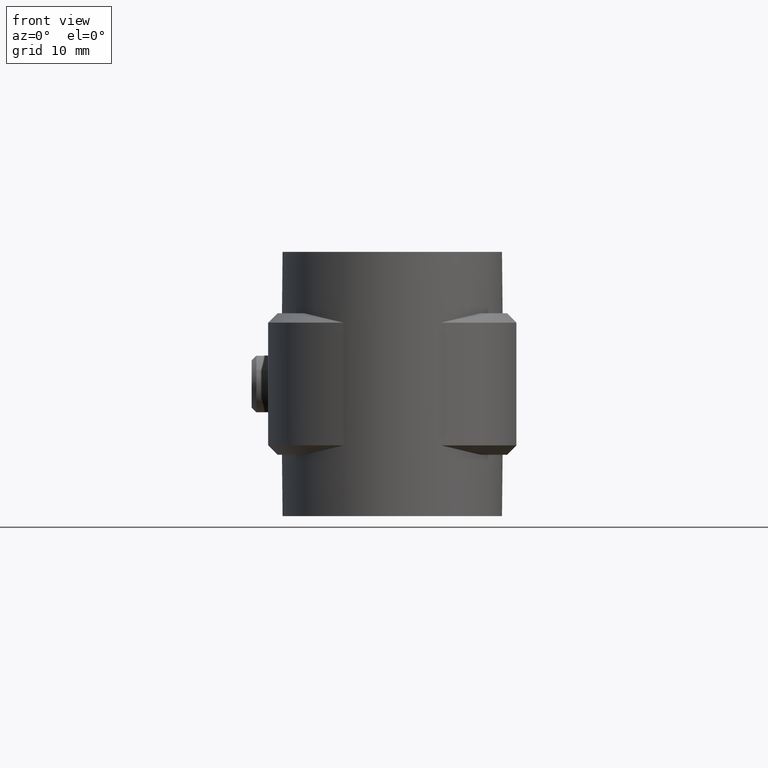
[diagram: clean part render]
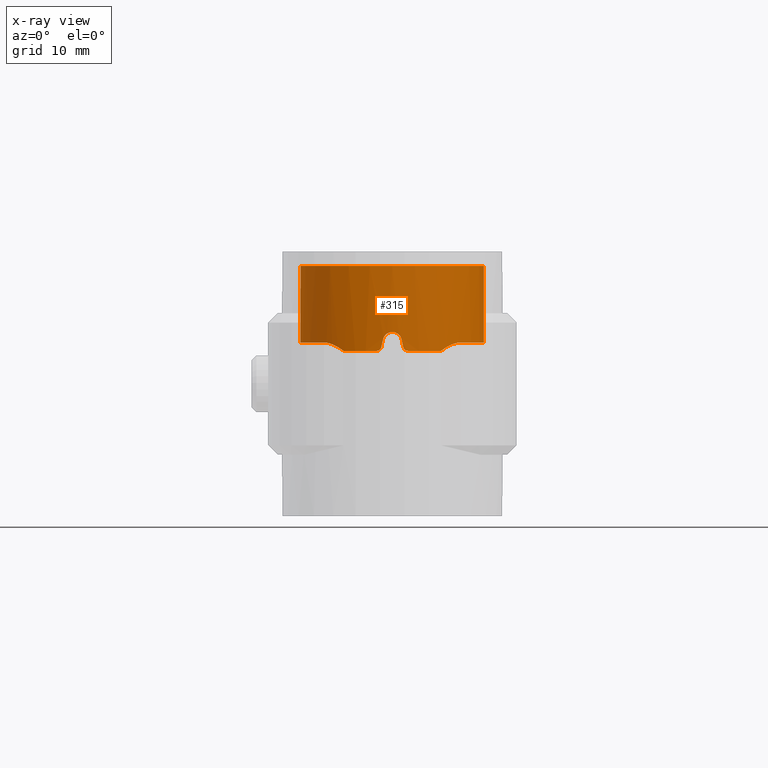
[diagram: x-ray — body ghosted, one internal face saturated and labeled with its STEP entity id]
A machine part, front view, then the same camera in x-ray: the body is ghosted and one INTERNAL B-rep face — a face not visible from any outside direction — is saturated and labeled: STEP entity #315.
In plain terms, the highlighted cylindrical surface (partial cylindrical patch) has radius 9.74 mm, axis along (0, 0, 1).
Its self-contained STEP definition (entity closure, byte-faithful):
#315 = ADVANCED_FACE( '', ( #506 ), #507, .T. );
#506 = FACE_OUTER_BOUND( '', #916, .T. );
#507 = CYLINDRICAL_SURFACE( '', #917, 9.74000000000000 );
#916 = EDGE_LOOP( '', ( #1902, #1903, #1904, #1905, #1906, #1907, #1908, #1909, #1910, #1911, #1912, #1913, #1914, #1915, #1916, #1917 ) );
#917 = AXIS2_PLACEMENT_3D( '', #1918, #1919, #1920 );
#1902 = ORIENTED_EDGE( '', *, *, #4376, .F. );
#1903 = ORIENTED_EDGE( '', *, *, #4377, .T. );
#1904 = ORIENTED_EDGE( '', *, *, #4378, .T. );
#1905 = ORIENTED_EDGE( '', *, *, #4379, .F. );
#1906 = ORIENTED_EDGE( '', *, *, #4380, .F. );
#1907 = ORIENTED_EDGE( '', *, *, #4381, .T. );
#1908 = ORIENTED_EDGE( '', *, *, #4382, .T. );
#1909 = ORIENTED_EDGE( '', *, *, #4383, .T. );
#1910 = ORIENTED_EDGE( '', *, *, #4384, .F. );
#1911 = ORIENTED_EDGE( '', *, *, #4385, .F. );
#1912 = ORIENTED_EDGE( '', *, *, #4386, .F. );
#1913 = ORIENTED_EDGE( '', *, *, #4387, .F. );
#1914 = ORIENTED_EDGE( '', *, *, #4388, .F. );
#1915 = ORIENTED_EDGE( '', *, *, #4389, .F. );
#1916 = ORIENTED_EDGE( '', *, *, #4390, .F. );
#1917 = ORIENTED_EDGE( '', *, *, #4391, .F. );
#1918 = CARTESIAN_POINT( '', ( 0.000000000000000, 0.000000000000000, 0.000000000000000 ) );
#1919 = DIRECTION( '', ( 0.000000000000000, 0.000000000000000, 1.00000000000000 ) );
#1920 = DIRECTION( '', ( 1.00000000000000, -6.12303176911189E-017, 0.000000000000000 ) );
#4376 = EDGE_CURVE( '', #4880, #4881, #4882, .T. );
#4377 = EDGE_CURVE( '', #4880, #4883, #4884, .T. );
#4378 = EDGE_CURVE( '', #4883, #4885, #4886, .T. );
#4379 = EDGE_CURVE( '', #4887, #4885, #4888, .T. );
#4380 = EDGE_CURVE( '', #4889, #4887, #4890, .F. );
#4381 = EDGE_CURVE( '', #4889, #4891, #4892, .T. );
#4382 = EDGE_CURVE( '', #4891, #4893, #4894, .T. );
#4383 = EDGE_CURVE( '', #4893, #4895, #4896, .T. );
#4384 = EDGE_CURVE( '', #4897, #4895, #4898, .T. );
#4385 = EDGE_CURVE( '', #4899, #4897, #4900, .T. );
#4386 = EDGE_CURVE( '', #4901, #4899, #4902, .T. );
#4387 = EDGE_CURVE( '', #4903, #4901, #4904, .T. );
#4388 = EDGE_CURVE( '', #4905, #4903, #4906, .T. );
#4389 = EDGE_CURVE( '', #4907, #4905, #4908, .T. );
#4390 = EDGE_CURVE( '', #4909, #4907, #4910, .T. );
#4391 = EDGE_CURVE( '', #4881, #4909, #4911, .T. );
#4880 = VERTEX_POINT( '', #5722 );
#4881 = VERTEX_POINT( '', #5723 );
#4882 = B_SPLINE_CURVE_WITH_KNOTS( '', 3, ( #5724, #5725, #5726, #5727 ), .UNSPECIFIED., .F., .F., ( 4, 4 ), ( 0.00511247518674579, 0.00528905155583519 ), .UNSPECIFIED. );
#4883 = VERTEX_POINT( '', #5728 );
#4884 = B_SPLINE_CURVE_WITH_KNOTS( '', 3, ( #5729, #5730, #5731, #5732, #5733, #5734, #5735, #5736 ), .UNSPECIFIED., .F., .F., ( 4, 2, 2, 4 ), ( 0.00165729756427071, 0.00290105319597619, 0.00352293101182893, 0.00414480882768168 ), .UNSPECIFIED. );
#4885 = VERTEX_POINT( '', #5737 );
#4886 = B_SPLINE_CURVE_WITH_KNOTS( '', 3, ( #5738, #5739, #5740, #5741, #5742, #5743, #5744, #5745, #5746, #5747, #5748, #5749, #5750, #5751, #5752, #5753, #5754, #5755, #5756, #5757, #5758, #5759, #5760, #5761, #5762, #5763 ), .UNSPECIFIED., .F., .F., ( 4, 2, 2, 2, 2, 2, 2, 2, 2, 2, 2, 2, 4 ), ( 0.000128665650344789, 0.00114666360792160, 0.00216466156549841, 0.00420065748065202, 0.00623665339580563, 0.00725465135338244, 0.00827264931095925, 0.00929064726853606, 0.0103086452261129, 0.0123446411412665, 0.0133626390988433, 0.0143806370564201, 0.0164166329715737 ), .UNSPECIFIED. );
#4887 = VERTEX_POINT( '', #5764 );
#4888 = LINE( '', #5765, #5766 );
#4889 = VERTEX_POINT( '', #5767 );
#4890 = CIRCLE( '', #5768, 9.74000000000000 );
#4891 = VERTEX_POINT( '', #5769 );
#4892 = LINE( '', #5770, #5771 );
#4893 = VERTEX_POINT( '', #5772 );
#4894 = B_SPLINE_CURVE_WITH_KNOTS( '', 3, ( #5773, #5774, #5775, #5776, #5777, #5778, #5779, #5780, #5781, #5782, #5783, #5784, #5785, #5786, #5787, #5788, #5789, #5790, #5791, #5792, #5793, #5794, #5795, #5796, #5797, #5798, #5799, #5800 ), .UNSPECIFIED., .F., .F., ( 4, 2, 2, 2, 2, 2, 2, 2, 2, 2, 2, 2, 2, 4 ), ( 0.000000000000000, 0.00203570962645634, 0.00305356443968451, 0.00407141925291267, 0.00610712887936901, 0.00712498369259718, 0.00814283850582535, 0.00916069331905351, 0.0101785481322817, 0.0122142577587380, 0.0132321125719662, 0.0142499673851944, 0.0152678221984225, 0.0162856770116507 ), .UNSPECIFIED. );
#4895 = VERTEX_POINT( '', #5801 );
#4896 = B_SPLINE_CURVE_WITH_KNOTS( '', 3, ( #5802, #5803, #5804, #5805, #5806, #5807, #5808, #5809 ), .UNSPECIFIED., .F., .F., ( 4, 2, 2, 4 ), ( 5.63355521491148E-005, 0.000684171958215789, 0.00131200836428246, 0.00256768117641581 ), .UNSPECIFIED. );
#4897 = VERTEX_POINT( '', #5810 );
#4898 = B_SPLINE_CURVE_WITH_KNOTS( '', 3, ( #5811, #5812, #5813, #5814 ), .UNSPECIFIED., .F., .F., ( 4, 4 ), ( 3.87895961444886E-018, 0.000176569787224747 ), .UNSPECIFIED. );
#4899 = VERTEX_POINT( '', #5815 );
#4900 = CIRCLE( '', #5816, 9.74000000000000 );
#4901 = VERTEX_POINT( '', #5817 );
#4902 = B_SPLINE_CURVE_WITH_KNOTS( '', 3, ( #5818, #5819, #5820, #5821, #5822, #5823 ), .UNSPECIFIED., .F., .F., ( 4, 2, 4 ), ( 1.78811203067275E-018, 0.000337975344790109, 0.000675950689580215 ), .UNSPECIFIED. );
#4903 = VERTEX_POINT( '', #5824 );
#4904 = ELLIPSE( '', #5825, 44.3711563805861, 9.74000000000000 );
#4905 = VERTEX_POINT( '', #5826 );
#4906 = B_SPLINE_CURVE_WITH_KNOTS( '', 3, ( #5827, #5828, #5829, #5830, #5831, #5832, #5833, #5834, #5835, #5836 ), .UNSPECIFIED., .F., .F., ( 4, 2, 2, 2, 4 ), ( 0.000000000000000, 0.000672051809726939, 0.00134410361945388, 0.00201615542918082, 0.00268820723890776 ), .UNSPECIFIED. );
#4907 = VERTEX_POINT( '', #5837 );
#4908 = ELLIPSE( '', #5838, 44.3711337458409, 9.74000000000000 );
#4909 = VERTEX_POINT( '', #5839 );
#4910 = B_SPLINE_CURVE_WITH_KNOTS( '', 3, ( #5840, #5841, #5842, #5843, #5844, #5845 ), .UNSPECIFIED., .F., .F., ( 4, 2, 4 ), ( 7.77003152234485E-018, 0.000337932954143210, 0.000675865908286413 ), .UNSPECIFIED. );
#4911 = CIRCLE( '', #5846, 9.74000000000000 );
#5722 = CARTESIAN_POINT( '', ( 5.15290067253359, -8.26530184925178, -9.00334139722807 ) );
#5723 = CARTESIAN_POINT( '', ( 5.00000000000000, -8.35868410696325, -9.00000000000000 ) );
#5724 = CARTESIAN_POINT( '', ( 5.15290067252644, -8.26530184924160, -9.00334139722775 ) );
#5725 = CARTESIAN_POINT( '', ( 5.10238839465892, -8.29679310695268, -9.00113261389081 ) );
#5726 = CARTESIAN_POINT( '', ( 5.05142599710823, -8.32792208961091, -8.99999999999997 ) );
#5727 = CARTESIAN_POINT( '', ( 5.00000000000000, -8.35868410696325, -8.99999999999997 ) );
#5728 = CARTESIAN_POINT( '', ( 6.95902164912057, -6.81466199124514, -8.11799656461130 ) );
#5729 = CARTESIAN_POINT( '', ( 5.15290067251871, -8.26530184924641, -9.00334139721352 ) );
#5730 = CARTESIAN_POINT( '', ( 5.44907426806421, -8.08065606770030, -8.76856680556298 ) );
#5731 = CARTESIAN_POINT( '', ( 5.75207947105306, -7.86971313882393, -8.57833081527870 ) );
#5732 = CARTESIAN_POINT( '', ( 6.20887158971729, -7.50701767445459, -8.35510613786718 ) );
#5733 = CARTESIAN_POINT( '', ( 6.36246690587964, -7.37752766765439, -8.29102575602881 ) );
#5734 = CARTESIAN_POINT( '', ( 6.66465683565371, -7.10571944833132, -8.18697797906827 ) );
#5735 = CARTESIAN_POINT( '', ( 6.81353976275907, -6.96322323417316, -8.14869550666416 ) );
#5736 = CARTESIAN_POINT( '', ( 6.95896523879890, -6.81471956907902, -8.11799635953711 ) );
#5737 = CARTESIAN_POINT( '', ( 6.01729818780882, 7.65896354077948, -8.12086241231917 ) );
#5738 = CARTESIAN_POINT( '', ( 6.95919067098810, -6.81448935759907, -8.11799709973607 ) );
#5739 = CARTESIAN_POINT( '', ( 7.19946211573694, -6.56911590273610, -8.11869935564063 ) );
#5740 = CARTESIAN_POINT( '', ( 7.42482155270499, -6.31308582106119, -8.11750239221288 ) );
#5741 = CARTESIAN_POINT( '', ( 7.84666105550341, -5.78039254321387, -8.11798463489034 ) );
#5742 = CARTESIAN_POINT( '', ( 8.04313917433543, -5.50372695296684, -8.11836586933796 ) );
#5743 = CARTESIAN_POINT( '', ( 8.58920928475245, -4.64274449705062, -8.11900401654248 ) );
#5744 = CARTESIAN_POINT( '', ( 8.89743619109401, -4.02070307979342, -8.11843008264165 ) );
#5745 = CARTESIAN_POINT( '', ( 9.36998587052903, -2.74477482073415, -8.11775880203325 ) );
#5746 = CARTESIAN_POINT( '', ( 9.53843195309938, -2.08698353733982, -8.11883913647496 ) );
#5747 = CARTESIAN_POINT( '', ( 9.68712070858720, -1.06990115408836, -8.11950834662493 ) );
#5748 = CARTESIAN_POINT( '', ( 9.71884039901968, -0.726524416825599, -8.11955266329700 ) );
#5749 = CARTESIAN_POINT( '', ( 9.74585126813843, -0.0456014164848170, -8.11923941266630 ) );
#5750 = CARTESIAN_POINT( '', ( 9.74147539217435, 0.293921268240220, -8.11888495175145 ) );
#5751 = CARTESIAN_POINT( '', ( 9.69740548047307, 0.971112493768436, -8.11821072912186 ) );
#5752 = CARTESIAN_POINT( '', ( 9.65771221961664, 1.30878108905129, -8.11792969634905 ) );
#5753 = CARTESIAN_POINT( '', ( 9.54227922223956, 1.98222614774553, -8.11809740901925 ) );
#5754 = CARTESIAN_POINT( '', ( 9.46597552632661, 2.31938436886294, -8.11841516356494 ) );
#5755 = CARTESIAN_POINT( '', ( 9.18742478873919, 3.30535502078380, -8.11906128548839 ) );
#5756 = CARTESIAN_POINT( '', ( 8.93555770435930, 3.93548479817660, -8.11883802413083 ) );
#5757 = CARTESIAN_POINT( '', ( 8.45911729182918, 4.84015419839390, -8.11805909968800 ) );
#5758 = CARTESIAN_POINT( '', ( 8.28252414688924, 5.13659995468791, -8.11778774980607 ) );
#5759 = CARTESIAN_POINT( '', ( 7.90133278100169, 5.70559423918063, -8.11805142712227 ) );
#5760 = CARTESIAN_POINT( '', ( 7.69720355035747, 5.97793831516410, -8.11870246683852 ) );
#5761 = CARTESIAN_POINT( '', ( 7.04533948353480, 6.75952273048299, -8.12065349690706 ) );
#5762 = CARTESIAN_POINT( '', ( 6.55856919469537, 7.23371160799398, -8.12159327370025 ) );
#5763 = CARTESIAN_POINT( '', ( 6.01729818780897, 7.65896354077960, -8.12086241231967 ) );
#5764 = CARTESIAN_POINT( '', ( 6.01729818780890, 7.65896354077964, 0.000000000000000 ) );
#5765 = CARTESIAN_POINT( '', ( 6.01729818780889, 7.65896354077964, 0.000000000000000 ) );
#5766 = VECTOR( '', #8238, 1000.00000000000 );
#5767 = CARTESIAN_POINT( '', ( -6.01729818780890, 7.65896354077964, 0.000000000000000 ) );
#5768 = AXIS2_PLACEMENT_3D( '', #8239, #8240, #8241 );
#5769 = CARTESIAN_POINT( '', ( -6.01729818780882, 7.65896354077948, -8.12086241231917 ) );
#5770 = CARTESIAN_POINT( '', ( -6.01729818780890, 7.65896354077964, 0.000000000000000 ) );
#5771 = VECTOR( '', #8242, 1000.00000000000 );
#5772 = CARTESIAN_POINT( '', ( -6.95902175458089, -6.81466197978690, -8.11799664381364 ) );
#5773 = CARTESIAN_POINT( '', ( -6.01729818780881, 7.65896354077948, -8.12086241231916 ) );
#5774 = CARTESIAN_POINT( '', ( -6.55856790360628, 7.23371262234353, -8.12159327195637 ) );
#5775 = CARTESIAN_POINT( '', ( -7.04559938824156, 6.75931693220311, -8.12065285765963 ) );
#5776 = CARTESIAN_POINT( '', ( -7.69800816164832, 5.97692055958460, -8.11869998916257 ) );
#5777 = CARTESIAN_POINT( '', ( -7.90234522029800, 5.70422200289576, -8.11804897837076 ) );
#5778 = CARTESIAN_POINT( '', ( -8.28396518059934, 5.13430906020513, -8.11778851272389 ) );
#5779 = CARTESIAN_POINT( '', ( -8.46008894743079, 4.83843562215687, -8.11806057312963 ) );
#5780 = CARTESIAN_POINT( '', ( -8.93597508713593, 3.93443850058371, -8.11883893756700 ) );
#5781 = CARTESIAN_POINT( '', ( -9.18788402010638, 3.30423407850028, -8.11906113461876 ) );
#5782 = CARTESIAN_POINT( '', ( -9.46654362572337, 2.31712012752649, -8.11841338666603 ) );
#5783 = CARTESIAN_POINT( '', ( -9.54272342281448, 1.98002498577867, -8.11809593807532 ) );
#5784 = CARTESIAN_POINT( '', ( -9.65790534491521, 1.30726187785697, -8.11793024589715 ) );
#5785 = CARTESIAN_POINT( '', ( -9.69753843015102, 0.969775008865522, -8.11821197108158 ) );
#5786 = CARTESIAN_POINT( '', ( -9.74151340987761, 0.292628872892917, -8.11888632849301 ) );
#5787 = CARTESIAN_POINT( '', ( -9.74585509605919, -0.0470304201823227, -8.11924067778936 ) );
#5788 = CARTESIAN_POINT( '', ( -9.71869901505160, -0.728555329841385, -8.11955298677537 ) );
#5789 = CARTESIAN_POINT( '', ( -9.68682337335512, -1.07245044347632, -8.11950732403661 ) );
#5790 = CARTESIAN_POINT( '', ( -9.53810213639688, -2.08820394521894, -8.11883701781424 ) );
#5791 = CARTESIAN_POINT( '', ( -9.36972104814378, -2.74577238211113, -8.11775842884233 ) );
#5792 = CARTESIAN_POINT( '', ( -9.01497370934746, -3.70319910933402, -8.11826349053475 ) );
#5793 = CARTESIAN_POINT( '', ( -8.87890290792454, -4.01877121997415, -8.11857003486609 ) );
#5794 = CARTESIAN_POINT( '', ( -8.57394864935323, -4.63387996446793, -8.11883484150411 ) );
#5795 = CARTESIAN_POINT( '', ( -8.40652505998383, -4.93084431672665, -8.11879077144499 ) );
#5796 = CARTESIAN_POINT( '', ( -8.04274996764084, -5.50427672069135, -8.11836517087792 ) );
#5797 = CARTESIAN_POINT( '', ( -7.84639585990168, -5.78074292730298, -8.11798423333141 ) );
#5798 = CARTESIAN_POINT( '', ( -7.42474394500355, -6.31316831178916, -8.11750240196253 ) );
#5799 = CARTESIAN_POINT( '', ( -7.19944831793022, -6.56912999353036, -8.11869931531292 ) );
#5800 = CARTESIAN_POINT( '', ( -6.95919067098807, -6.81448935759905, -8.11799709973605 ) );
#5801 = CARTESIAN_POINT( '', ( -5.15290067251411, -8.26530184925486, -9.00334139722721 ) );
#5802 = CARTESIAN_POINT( '', ( -6.95896530010642, -6.81471950647382, -8.11799634659516 ) );
#5803 = CARTESIAN_POINT( '', ( -6.81350688909384, -6.96325680634119, -8.14870245014605 ) );
#5804 = CARTESIAN_POINT( '', ( -6.66471327543449, -7.10565543609624, -8.18697551745480 ) );
#5805 = CARTESIAN_POINT( '', ( -6.36311288460082, -7.37695985065012, -8.29078640563770 ) );
#5806 = CARTESIAN_POINT( '', ( -6.20911076329465, -7.50684069542279, -8.35497046396448 ) );
#5807 = CARTESIAN_POINT( '', ( -5.75041296862248, -7.87101044844735, -8.57918286263685 ) );
#5808 = CARTESIAN_POINT( '', ( -5.44761061503819, -8.08156856415886, -8.76972703235672 ) );
#5809 = CARTESIAN_POINT( '', ( -5.15290067250837, -8.26530184925286, -9.00334139722172 ) );
#5810 = CARTESIAN_POINT( '', ( -5.00000000000005, -8.35868410696322, -9.00000000000000 ) );
#5811 = CARTESIAN_POINT( '', ( -5.00000000000005, -8.35868410696322, -8.99999999999997 ) );
#5812 = CARTESIAN_POINT( '', ( -5.05145605966113, -8.32790410678459, -8.99999999999997 ) );
#5813 = CARTESIAN_POINT( '', ( -5.10241745501397, -8.29677498963200, -9.00113388463213 ) );
#5814 = CARTESIAN_POINT( '', ( -5.15290067251134, -8.26530184925101, -9.00334139722709 ) );
#5815 = CARTESIAN_POINT( '', ( -1.65000000000003, -9.59922392696409, -9.00000000000000 ) );
#5816 = AXIS2_PLACEMENT_3D( '', #8243, #8244, #8245 );
#5817 = CARTESIAN_POINT( '', ( -1.16219512100914, -9.67041377091500, -8.60975609337373 ) );
#5818 = CARTESIAN_POINT( '', ( -1.16219512100915, -9.67041377091500, -8.60975609337372 ) );
#5819 = CARTESIAN_POINT( '', ( -1.18727375212526, -9.66739980859496, -8.72121668057950 ) );
#5820 = CARTESIAN_POINT( '', ( -1.24993415724792, -9.65988111351269, -8.82066197873394 ) );
#5821 = CARTESIAN_POINT( '', ( -1.42754791561315, -9.63523458319946, -8.96194356072408 ) );
#5822 = CARTESIAN_POINT( '', ( -1.53740204368782, -9.61857826532818, -8.99999999999994 ) );
#5823 = CARTESIAN_POINT( '', ( -1.65000000000003, -9.59922392696409, -8.99999999999994 ) );
#5824 = CARTESIAN_POINT( '', ( -0.975610000000024, -9.69101569124207, -7.78048800000004 ) );
#5825 = AXIS2_PLACEMENT_3D( '', #8246, #8247, #8248 );
#5826 = CARTESIAN_POINT( '', ( 0.975609757981814, -9.69101571560642, -7.78048781325256 ) );
#5827 = CARTESIAN_POINT( '', ( 0.975609757981816, -9.69101571560642, -7.78048781325256 ) );
#5828 = CARTESIAN_POINT( '', ( 0.925736317332277, -9.69603655313158, -7.55882816720831 ) );
#5829 = CARTESIAN_POINT( '', ( 0.801970009199494, -9.70855138127401, -7.36098304572832 ) );
#5830 = CARTESIAN_POINT( '', ( 0.447591118593249, -9.73133022813681, -7.07741626041991 ) );
#5831 = CARTESIAN_POINT( '', ( 0.227250466399519, -9.74000009858714, -6.99999905905285 ) );
#5832 = CARTESIAN_POINT( '', ( -0.227258917249933, -9.73999990141103, -7.00000093409708 ) );
#5833 = CARTESIAN_POINT( '', ( -0.447787378928190, -9.73131929998031, -7.07753890539982 ) );
#5834 = CARTESIAN_POINT( '', ( -0.801958240302645, -9.70855044976887, -7.36100772477569 ) );
#5835 = CARTESIAN_POINT( '', ( -0.925736493757280, -9.69603653662873, -7.55882786430924 ) );
#5836 = CARTESIAN_POINT( '', ( -0.975610000000024, -9.69101569124207, -7.78048800000004 ) );
#5837 = CARTESIAN_POINT( '', ( 1.16219499999999, -9.67041378545794, -8.60975599999999 ) );
#5838 = AXIS2_PLACEMENT_3D( '', #8249, #8250, #8251 );
#5839 = CARTESIAN_POINT( '', ( 1.64999999999995, -9.59922392696411, -9.00000000000000 ) );
#5840 = CARTESIAN_POINT( '', ( 1.64999999999995, -9.59922392696411, -8.99999999999995 ) );
#5841 = CARTESIAN_POINT( '', ( 1.53740181557159, -9.61857830453883, -9.00000000048322 ) );
#5842 = CARTESIAN_POINT( '', ( 1.42754074627650, -9.63523539541048, -8.96193065177298 ) );
#5843 = CARTESIAN_POINT( '', ( 1.24998026664616, -9.65987489775338, -8.82070593205110 ) );
#5844 = CARTESIAN_POINT( '', ( 1.18727373173841, -9.66739981136341, -8.72121703218233 ) );
#5845 = CARTESIAN_POINT( '', ( 1.16219499999999, -9.67041378545794, -8.60975599999999 ) );
#5846 = AXIS2_PLACEMENT_3D( '', #8252, #8253, #8254 );
#8238 = DIRECTION( '', ( 0.000000000000000, 0.000000000000000, -1.00000000000000 ) );
#8239 = CARTESIAN_POINT( '', ( 0.000000000000000, 0.000000000000000, 0.000000000000000 ) );
#8240 = DIRECTION( '', ( 0.000000000000000, 0.000000000000000, -1.00000000000000 ) );
#8241 = DIRECTION( '', ( -1.00000000000000, 0.000000000000000, 0.000000000000000 ) );
#8242 = DIRECTION( '', ( 0.000000000000000, 0.000000000000000, -1.00000000000000 ) );
#8243 = CARTESIAN_POINT( '', ( 0.000000000000000, 0.000000000000000, -9.00000000000000 ) );
#8244 = DIRECTION( '', ( 6.12303176911189E-017, -3.56070223424702E-017, -1.00000000000000 ) );
#8245 = DIRECTION( '', ( -1.00000000000000, 0.000000000000000, -6.12303176911189E-017 ) );
#8246 = CARTESIAN_POINT( '', ( 0.000000000000000, 0.000000000000000, -3.44443890776447 ) );
#8247 = DIRECTION( '', ( 0.975609806487711, -3.70563945908342E-017, -0.219511971165610 ) );
#8248 = DIRECTION( '', ( -0.219511971165610, 8.33767984580742E-018, -0.975609806487711 ) );
#8249 = CARTESIAN_POINT( '', ( 0.000000000000000, 0.000000000000000, -3.44444212055029 ) );
#8250 = DIRECTION( '', ( -0.975609781292647, 2.14240545250314E-017, -0.219512083143762 ) );
#8251 = DIRECTION( '', ( 0.219512083143762, -4.82040968464266E-018, -0.975609781292647 ) );
#8252 = CARTESIAN_POINT( '', ( 0.000000000000000, 0.000000000000000, -9.00000000000000 ) );
#8253 = DIRECTION( '', ( 6.12303176911189E-017, -3.56070223424702E-017, -1.00000000000000 ) );
#8254 = DIRECTION( '', ( -1.00000000000000, 0.000000000000000, -6.12303176911189E-017 ) );